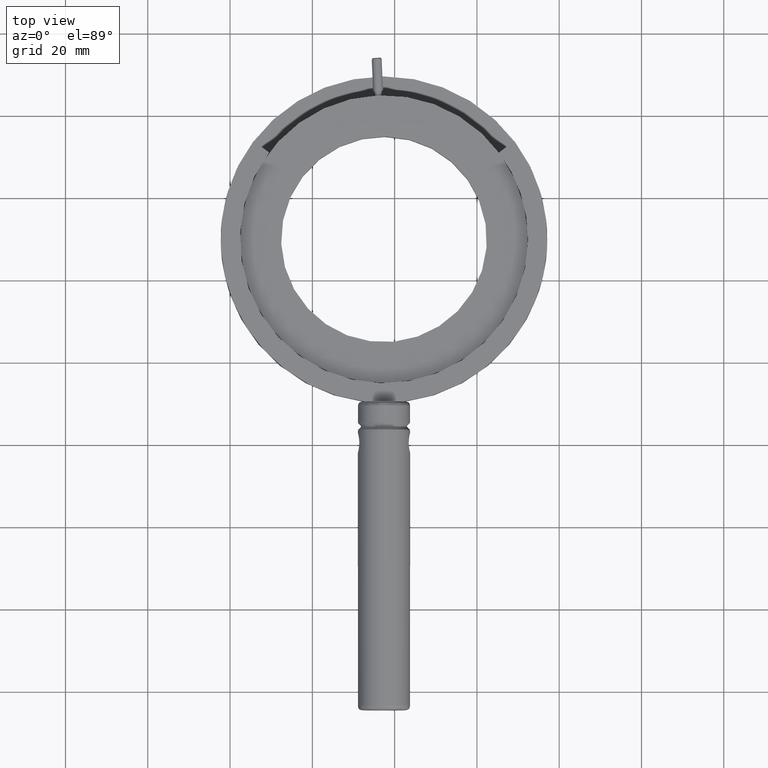
[diagram: clean part render]
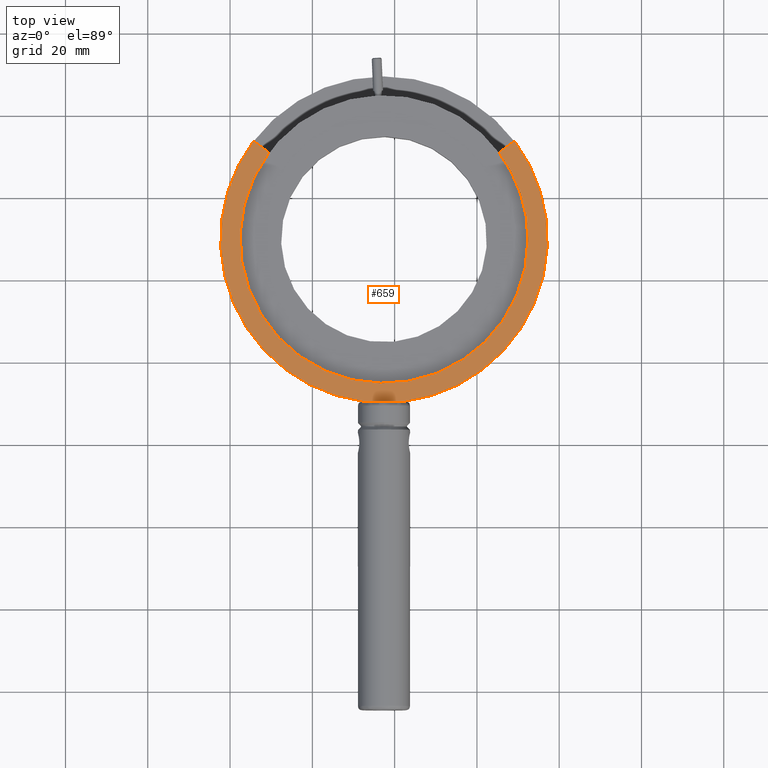
[diagram: same view with one face highlighted and labeled with its STEP entity id]
A machine part, top view. The second image highlights one B-rep face of the part: STEP entity #659.
In plain terms, the highlighted planar face has unit normal (0, 0, 1).
Its self-contained STEP definition (entity closure, byte-faithful):
#9 = ORIENTED_EDGE ( 'NONE', *, *, #70, .F. ) ;
#70 = EDGE_CURVE ( 'NONE', #1665, #1699, #1523, .T. ) ;
#147 = DIRECTION ( 'NONE',  ( -1.000000000000000000, 0.000000000000000000, 0.000000000000000000 ) ) ;
#183 = VERTEX_POINT ( 'NONE', #1782 ) ;
#204 = CARTESIAN_POINT ( 'NONE',  ( 29.11985442343306829, 13.77542675442552955, 83.79600000000000648 ) ) ;
#317 = VECTOR ( 'NONE', #964, 1000.000000000000000 ) ;
#392 = CARTESIAN_POINT ( 'NONE',  ( -30.53534308926348828, 10.94773868664348981, 83.79600000000000648 ) ) ;
#439 = DIRECTION ( 'NONE',  ( 1.000000000000000000, 0.000000000000000000, 0.000000000000000000 ) ) ;
#441 = CIRCLE ( 'NONE', #1651, 34.99889999999999901 ) ;
#473 = DIRECTION ( 'NONE',  ( 0.000000000000000000, 0.000000000000000000, 1.000000000000000000 ) ) ;
#484 = FACE_OUTER_BOUND ( 'NONE', #524, .T. ) ;
#524 = EDGE_LOOP ( 'NONE', ( #1375, #1546, #1235, #9, #1543, #1251 ) ) ;
#539 = DIRECTION ( 'NONE',  ( 0.000000000000000000, 0.000000000000000000, -1.000000000000000000 ) ) ;
#548 = CARTESIAN_POINT ( 'NONE',  ( 2.260447504899412596, -49.51592512715286176, 83.79600000000000648 ) ) ;
#586 = AXIS2_PLACEMENT_3D ( 'NONE', #1179, #473, #1060 ) ;
#659 = ADVANCED_FACE ( 'NONE', ( #484 ), #1034, .T. ) ;
#708 = LINE ( 'NONE', #392, #317 ) ;
#709 = VECTOR ( 'NONE', #439, 1000.000000000000000 ) ;
#862 = CARTESIAN_POINT ( 'NONE',  ( -53.67610836592287882, -49.51592512715286176, 83.79600000000000648 ) ) ;
#864 = CARTESIAN_POINT ( 'NONE',  ( -2.583978736669392706, -10.11512512715285972, 83.79600000000000648 ) ) ;
#869 = CARTESIAN_POINT ( 'NONE',  ( -34.28781189677169294, 13.77542675442572317, 83.79600000000000648 ) ) ;
#918 = VECTOR ( 'NONE', #1234, 1000.000000000000000 ) ;
#950 = CIRCLE ( 'NONE', #1345, 39.69750000000000512 ) ;
#964 = DIRECTION ( 'NONE',  ( -0.7986355100472899426, 0.6018150231520521531, 0.000000000000000000 ) ) ;
#991 = DIRECTION ( 'NONE',  ( 1.000000000000000000, 0.000000000000000000, 0.000000000000000000 ) ) ;
#1014 = CARTESIAN_POINT ( 'NONE',  ( -2.583978736669392706, -10.11512512715285972, 83.79600000000000648 ) ) ;
#1034 = PLANE ( 'NONE',  #586 ) ;
#1037 = VERTEX_POINT ( 'NONE', #869 ) ;
#1060 = DIRECTION ( 'NONE',  ( 1.000000000000000000, 0.000000000000000000, -0.000000000000000000 ) ) ;
#1122 = VERTEX_POINT ( 'NONE', #1626 ) ;
#1138 = DIRECTION ( 'NONE',  ( -0.000000000000000000, -0.000000000000000000, -1.000000000000000000 ) ) ;
#1176 = DIRECTION ( 'NONE',  ( -1.000000000000000000, 0.000000000000000000, 0.000000000000000000 ) ) ;
#1179 = CARTESIAN_POINT ( 'NONE',  ( -2.583978736669392706, -10.11512512715285972, 83.79600000000000648 ) ) ;
#1234 = DIRECTION ( 'NONE',  ( -0.7986355100472946056, -0.6018150231520459359, 0.000000000000000000 ) ) ;
#1235 = ORIENTED_EDGE ( 'NONE', *, *, #1820, .T. ) ;
#1251 = ORIENTED_EDGE ( 'NONE', *, *, #1254, .T. ) ;
#1254 = EDGE_CURVE ( 'NONE', #183, #1838, #441, .T. ) ;
#1309 = EDGE_CURVE ( 'NONE', #1838, #1037, #708, .T. ) ;
#1338 = AXIS2_PLACEMENT_3D ( 'NONE', #864, #1441, #147 ) ;
#1345 = AXIS2_PLACEMENT_3D ( 'NONE', #1014, #1138, #1176 ) ;
#1362 = EDGE_CURVE ( 'NONE', #1665, #183, #1381, .T. ) ;
#1375 = ORIENTED_EDGE ( 'NONE', *, *, #1309, .T. ) ;
#1381 = LINE ( 'NONE', #1521, #918 ) ;
#1419 = LINE ( 'NONE', #862, #709 ) ;
#1441 = DIRECTION ( 'NONE',  ( -0.000000000000000000, -0.000000000000000000, -1.000000000000000000 ) ) ;
#1521 = CARTESIAN_POINT ( 'NONE',  ( 29.11985442343306829, 13.77542675442551534, 83.79600000000000648 ) ) ;
#1523 = CIRCLE ( 'NONE', #1338, 39.69750000000000512 ) ;
#1543 = ORIENTED_EDGE ( 'NONE', *, *, #1362, .T. ) ;
#1546 = ORIENTED_EDGE ( 'NONE', *, *, #1778, .F. ) ;
#1626 = CARTESIAN_POINT ( 'NONE',  ( -7.428404978238196676, -49.51592512715286176, 83.79600000000000648 ) ) ;
#1651 = AXIS2_PLACEMENT_3D ( 'NONE', #1700, #539, #991 ) ;
#1665 = VERTEX_POINT ( 'NONE', #204 ) ;
#1699 = VERTEX_POINT ( 'NONE', #548 ) ;
#1700 = CARTESIAN_POINT ( 'NONE',  ( -2.583978736669392706, -10.11512512715285972, 83.79600000000000648 ) ) ;
#1722 = CARTESIAN_POINT ( 'NONE',  ( -30.53534308926348473, 10.94773868664348981, 83.79600000000000648 ) ) ;
#1778 = EDGE_CURVE ( 'NONE', #1122, #1037, #950, .T. ) ;
#1782 = CARTESIAN_POINT ( 'NONE',  ( 25.36738561592485297, 10.94773868664331040, 83.79600000000000648 ) ) ;
#1820 = EDGE_CURVE ( 'NONE', #1122, #1699, #1419, .T. ) ;
#1838 = VERTEX_POINT ( 'NONE', #1722 ) ;